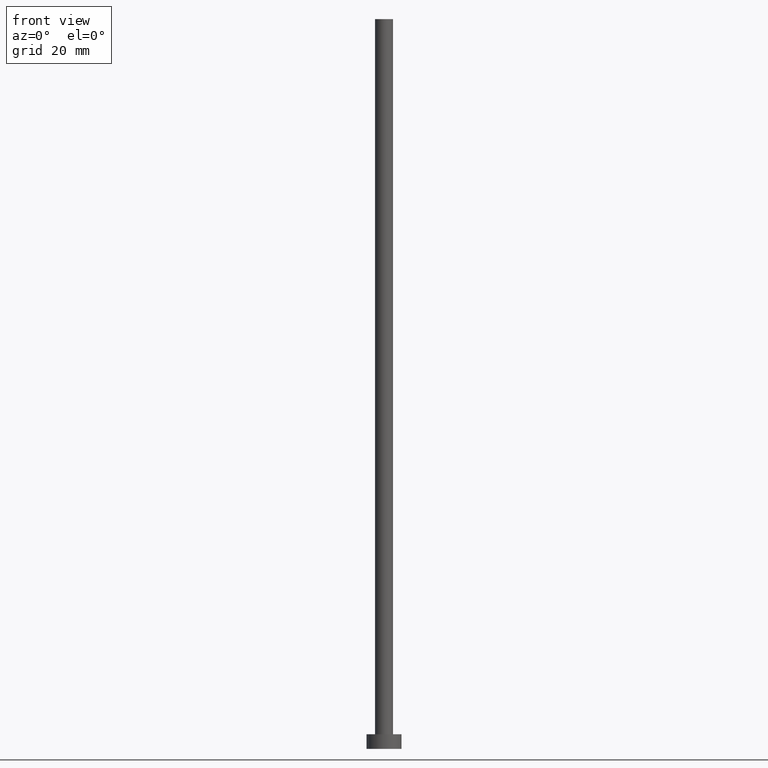
[diagram: clean part render]
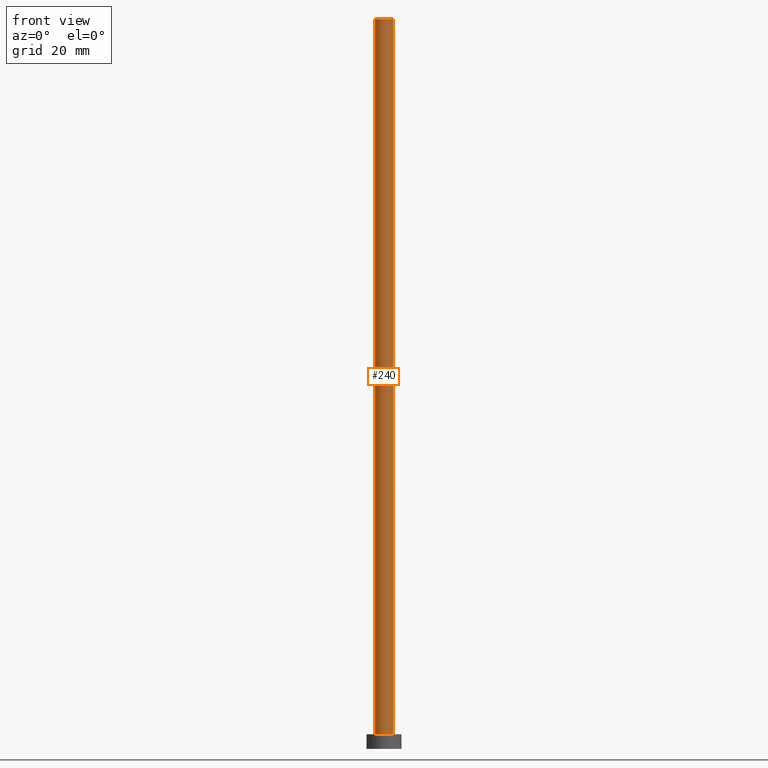
[diagram: same view with one face highlighted and labeled with its STEP entity id]
A machine part, front view. The second image highlights one B-rep face of the part: STEP entity #240.
In plain terms, the highlighted cylindrical surface (edge-blend (fillet) strip) has radius 3.1 mm, axis along (-0, -0, -1).
Its self-contained STEP definition (entity closure, byte-faithful):
#3 = AXIS2_PLACEMENT_3D ( 'NONE', #172, #74, #15 ) ;
#15 = DIRECTION ( 'NONE',  ( 1.000000000000000000, 0.000000000000000000, 0.000000000000000000 ) ) ;
#16 = DIRECTION ( 'NONE',  ( -0.000000000000000000, -0.000000000000000000, -1.000000000000000000 ) ) ;
#17 = AXIS2_PLACEMENT_3D ( 'NONE', #189, #16, #149 ) ;
#24 = EDGE_CURVE ( 'NONE', #50, #91, #72, .T. ) ;
#38 = CYLINDRICAL_SURFACE ( 'NONE', #17, 3.100000000000000089 ) ;
#50 = VERTEX_POINT ( 'NONE', #156 ) ;
#67 = CIRCLE ( 'NONE', #3, 3.100000000000000089 ) ;
#68 = ORIENTED_EDGE ( 'NONE', *, *, #116, .T. ) ;
#71 = CARTESIAN_POINT ( 'NONE',  ( 3.100000000000000089, 3.796405077356794918E-16, 250.0000000000000000 ) ) ;
#72 = LINE ( 'NONE', #151, #206 ) ;
#74 = DIRECTION ( 'NONE',  ( 0.000000000000000000, 0.000000000000000000, 1.000000000000000000 ) ) ;
#79 = CIRCLE ( 'NONE', #81, 3.100000000000000089 ) ;
#81 = AXIS2_PLACEMENT_3D ( 'NONE', #96, #202, #99 ) ;
#91 = VERTEX_POINT ( 'NONE', #247 ) ;
#96 = CARTESIAN_POINT ( 'NONE',  ( 0.000000000000000000, 0.000000000000000000, 5.000000000000000000 ) ) ;
#98 = CARTESIAN_POINT ( 'NONE',  ( 3.100000000000000089, 3.796405077356794918E-16, 5.000000000000000000 ) ) ;
#99 = DIRECTION ( 'NONE',  ( 1.000000000000000000, 0.000000000000000000, 0.000000000000000000 ) ) ;
#116 = EDGE_CURVE ( 'NONE', #91, #239, #79, .T. ) ;
#120 = EDGE_CURVE ( 'NONE', #199, #239, #168, .T. ) ;
#136 = FACE_OUTER_BOUND ( 'NONE', #245, .T. ) ;
#142 = VECTOR ( 'NONE', #249, 1000.000000000000000 ) ;
#149 = DIRECTION ( 'NONE',  ( -1.000000000000000000, 0.000000000000000000, 0.000000000000000000 ) ) ;
#151 = CARTESIAN_POINT ( 'NONE',  ( -3.100000000000000089, 0.000000000000000000, 250.0000000000000000 ) ) ;
#156 = CARTESIAN_POINT ( 'NONE',  ( -3.100000000000000089, 0.000000000000000000, 250.0000000000000000 ) ) ;
#168 = LINE ( 'NONE', #71, #142 ) ;
#172 = CARTESIAN_POINT ( 'NONE',  ( 0.000000000000000000, 0.000000000000000000, 250.0000000000000000 ) ) ;
#173 = ORIENTED_EDGE ( 'NONE', *, *, #24, .T. ) ;
#189 = CARTESIAN_POINT ( 'NONE',  ( 0.000000000000000000, 0.000000000000000000, 250.0000000000000000 ) ) ;
#199 = VERTEX_POINT ( 'NONE', #246 ) ;
#202 = DIRECTION ( 'NONE',  ( 0.000000000000000000, 0.000000000000000000, 1.000000000000000000 ) ) ;
#205 = DIRECTION ( 'NONE',  ( -0.000000000000000000, -0.000000000000000000, -1.000000000000000000 ) ) ;
#206 = VECTOR ( 'NONE', #205, 1000.000000000000000 ) ;
#208 = ORIENTED_EDGE ( 'NONE', *, *, #120, .F. ) ;
#214 = EDGE_CURVE ( 'NONE', #50, #199, #67, .T. ) ;
#217 = ORIENTED_EDGE ( 'NONE', *, *, #214, .F. ) ;
#239 = VERTEX_POINT ( 'NONE', #98 ) ;
#240 = ADVANCED_FACE ( 'NONE', ( #136 ), #38, .T. ) ;
#245 = EDGE_LOOP ( 'NONE', ( #208, #217, #173, #68 ) ) ;
#246 = CARTESIAN_POINT ( 'NONE',  ( 3.100000000000000089, 3.796405077356794918E-16, 250.0000000000000000 ) ) ;
#247 = CARTESIAN_POINT ( 'NONE',  ( -3.100000000000000089, 0.000000000000000000, 5.000000000000000000 ) ) ;
#249 = DIRECTION ( 'NONE',  ( -0.000000000000000000, -0.000000000000000000, -1.000000000000000000 ) ) ;